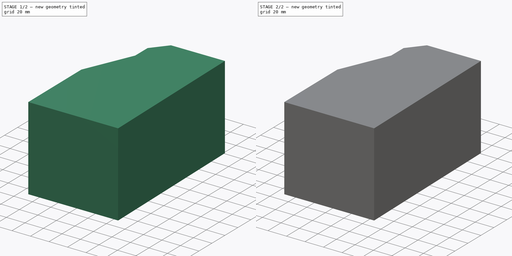
[diagram: build sequence overview — one tinted view per stage of 2, left to right]
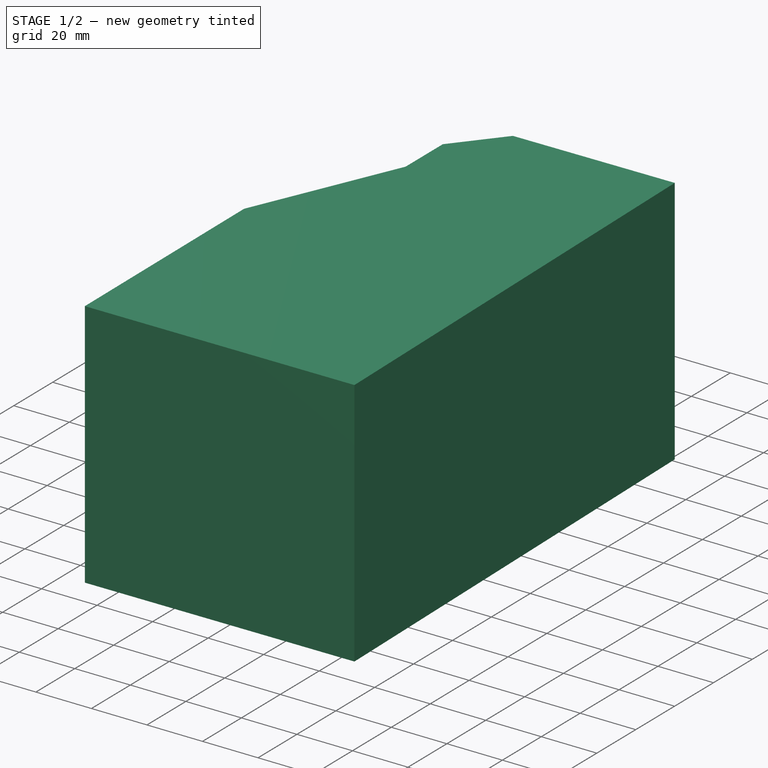
[diagram: stage 1 of 2 — iso view after this stage's code; geometry added in this stage tinted green]
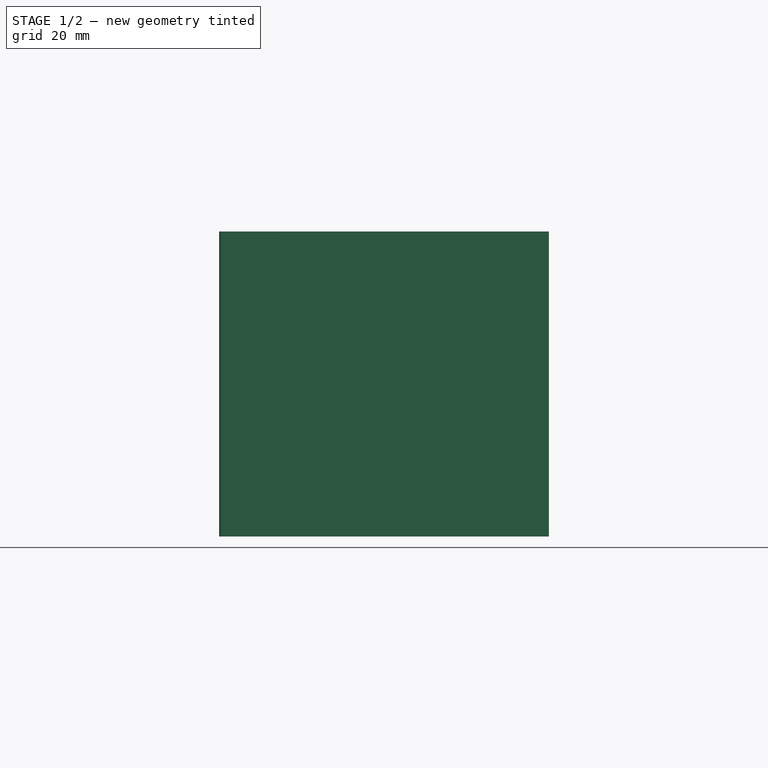
[diagram: stage 1 of 2 — front view after this stage's code; geometry added in this stage tinted green]
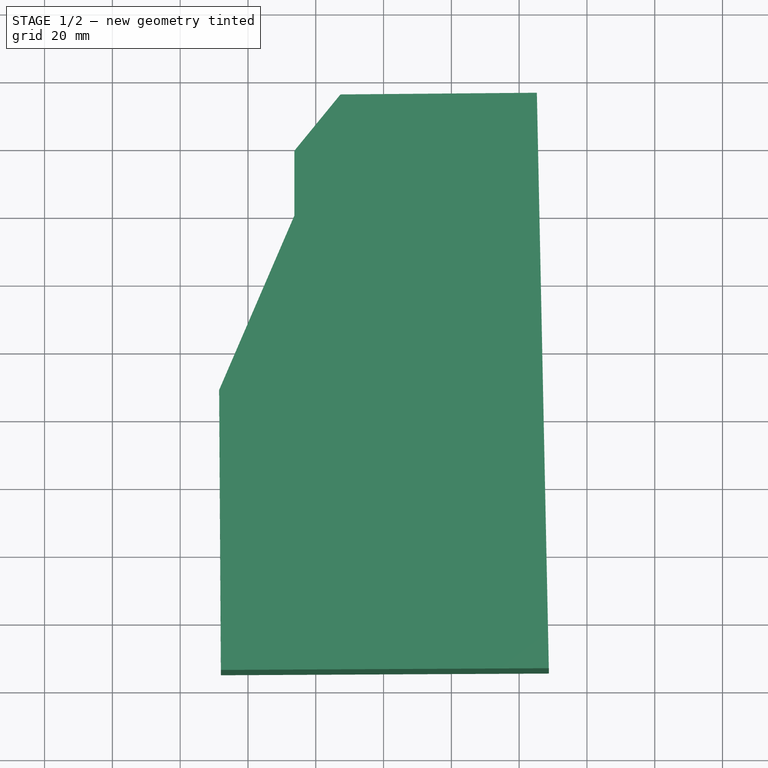
[diagram: stage 1 of 2 — top view after this stage's code; geometry added in this stage tinted green]
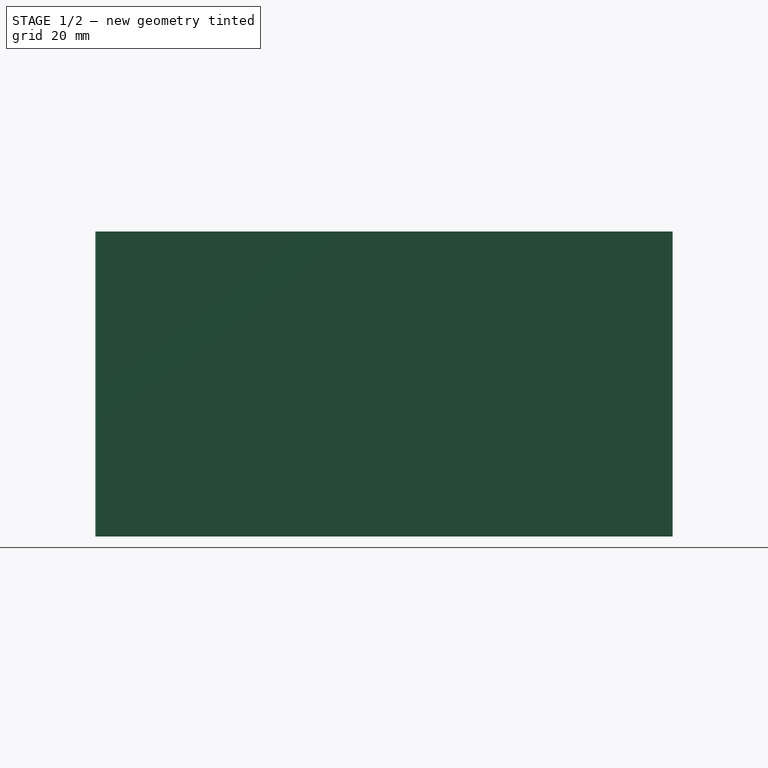
[diagram: stage 1 of 2 — right view after this stage's code; geometry added in this stage tinted green]
FCSTD DOCUMENT  (FreeCAD 0.18.4R)
Label: cabinav1
License: All rights reserved
LicenseURL: http://en.wikipedia.org/wiki/All_rights_reserved
objects: Sketcher::SketchObject×4, PartDesign::Pocket×3, PartDesign::Pad×1, PartDesign::Body×1
note: 13 computed .brp shape members not serialized (recipe doc carries the construction recipe); baked Part::Feature solids carry a one-line shape summary decoded from their .brp

FEATURE [Sketcher::SketchObject] Sketch
  MapMode = 5
  Support = -> [XY_Plane]
  sketch-geometry (7):
    g0: LineSegment StartX=-48.4922 StartY=7.78076 StartZ=0 EndX=-47.9883 EndY=-74.8534 EndZ=0
    g1: LineSegment StartX=-47.9883 StartY=-74.8534 StartZ=0 EndX=48.7541 EndY=-74.3496 EndZ=0
    g2: LineSegment StartX=48.7541 StartY=-74.3496 StartZ=0 EndX=45.2271 EndY=95.4536 EndZ=0
    g3: LineSegment StartX=45.2271 StartY=95.4536 StartZ=0 EndX=-12.7176 EndY=94.9497 EndZ=0
    g4: LineSegment StartX=-12.7176 StartY=94.9497 StartZ=0 EndX=-26.322 EndY=78.3221 EndZ=0
    g5: LineSegment StartX=-26.322 StartY=78.3221 StartZ=0 EndX=-26.322 EndY=59.1752 EndZ=0
    g6: LineSegment StartX=-26.322 StartY=59.1752 StartZ=0 EndX=-48.4922 EndY=7.78076 EndZ=0
  constraints (7):
    c: Coincident(g0,g1)
    c: Coincident(g1,g2)
    c: Coincident(g2,g3)
    c: Coincident(g3,g4)
    c: Coincident(g4,g5)
    c: Coincident(g5,g6)
    c: Coincident(g6,g0)
FEATURE [PartDesign::Pad] Pad
  Length = 90
  Length2 = 100
  Profile = -> Sketch
  Type = 0
FEATURE [Sketcher::SketchObject] Sketch001
  MapMode = 5
  Placement = pos=(-43.7141,18.8571,0) rot=(-0.421693,0.641161,0.641161;3.93973rad)
  Support = -> [Pad]
  sketch-geometry (4):
    g0: LineSegment StartX=-40.1522 StartY=86.0475 StartZ=0 EndX=9.62133 EndY=86.0475 EndZ=0
    g1: LineSegment StartX=9.62133 StartY=86.0475 StartZ=0 EndX=9.62133 EndY=5.92371 EndZ=0
    g2: LineSegment StartX=9.62133 StartY=5.92371 StartZ=0 EndX=-40.1522 EndY=5.92371 EndZ=0
    g3: LineSegment StartX=-40.1522 StartY=5.92371 StartZ=0 EndX=-40.1522 EndY=86.0475 EndZ=0
  constraints (8):
    c: Coincident(g0,g1)
    c: Coincident(g1,g2)
    c: Coincident(g2,g3)
    c: Coincident(g3,g0)
    c: Horizontal(g0)
    c: Horizontal(g2)
    c: Vertical(g1)
    c: Vertical(g3)
FEATURE [PartDesign::Pocket] Pocket
  BaseFeature = -> Pad
  Length = 12
  Length2 = 100
  Profile = -> Sketch001
  Type = 0
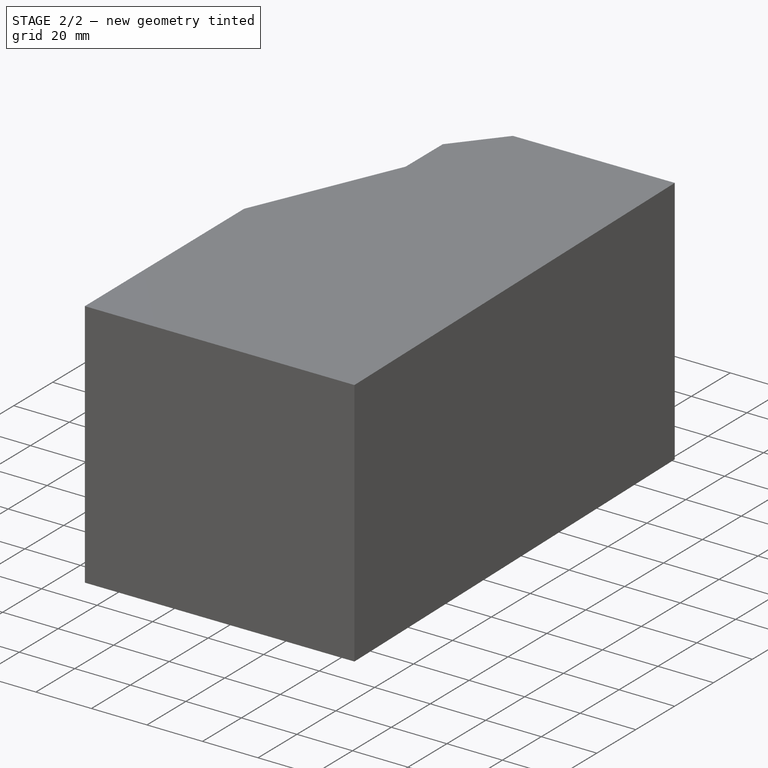
[diagram: stage 2 of 2 — iso view after this stage's code; geometry added in this stage tinted green]
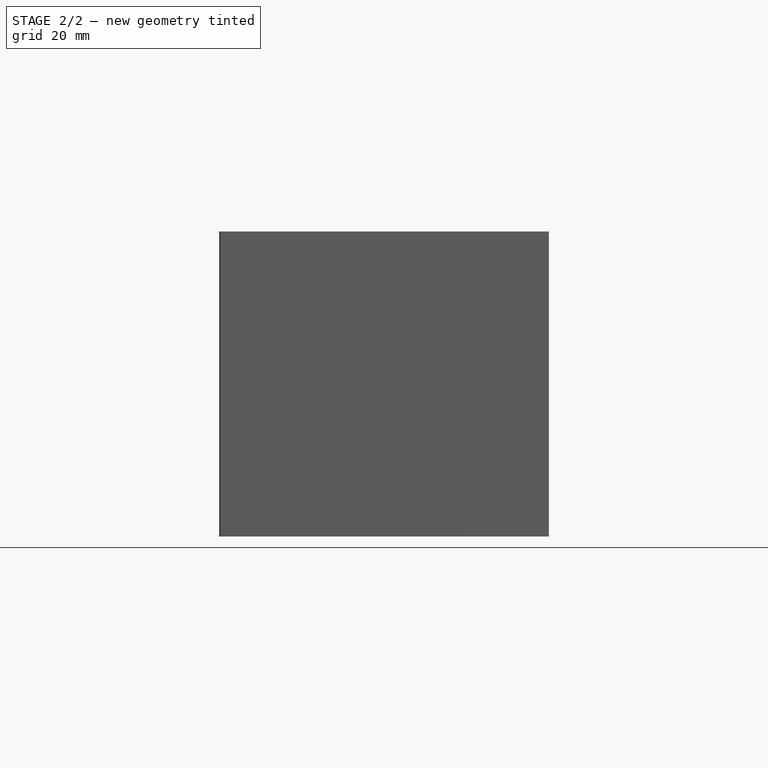
[diagram: stage 2 of 2 — front view after this stage's code; geometry added in this stage tinted green]
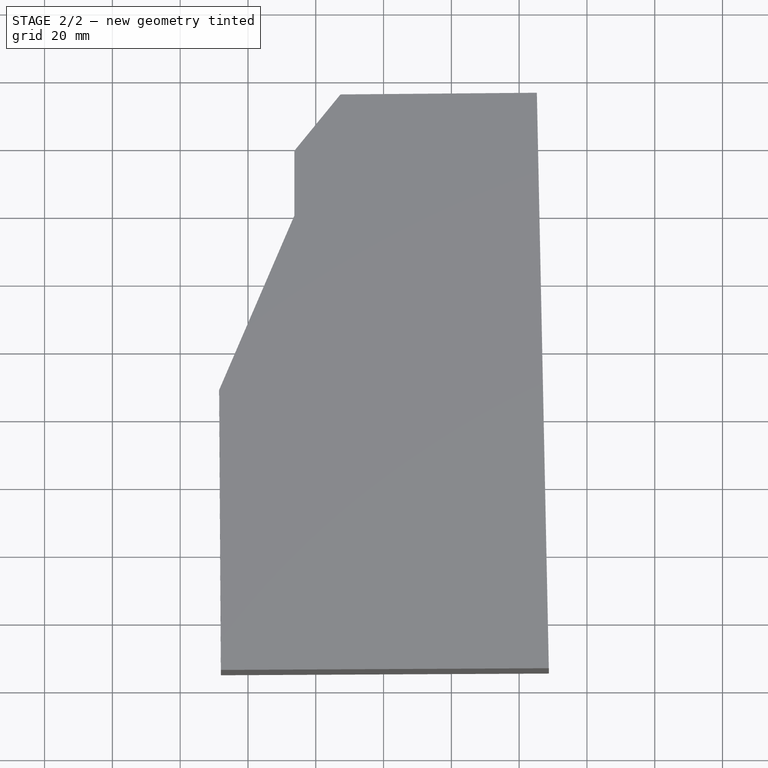
[diagram: stage 2 of 2 — top view after this stage's code; geometry added in this stage tinted green]
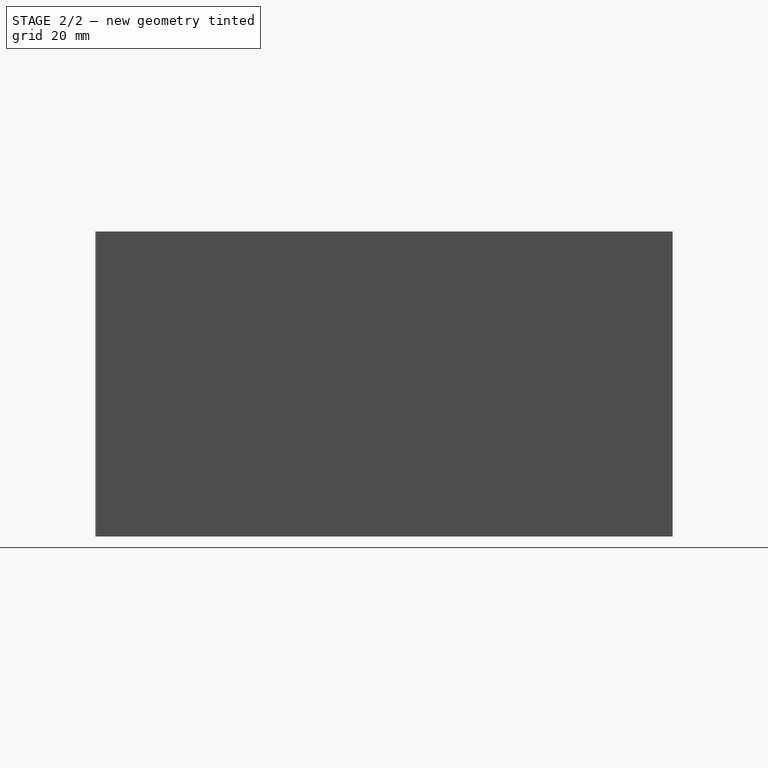
[diagram: stage 2 of 2 — right view after this stage's code; geometry added in this stage tinted green]
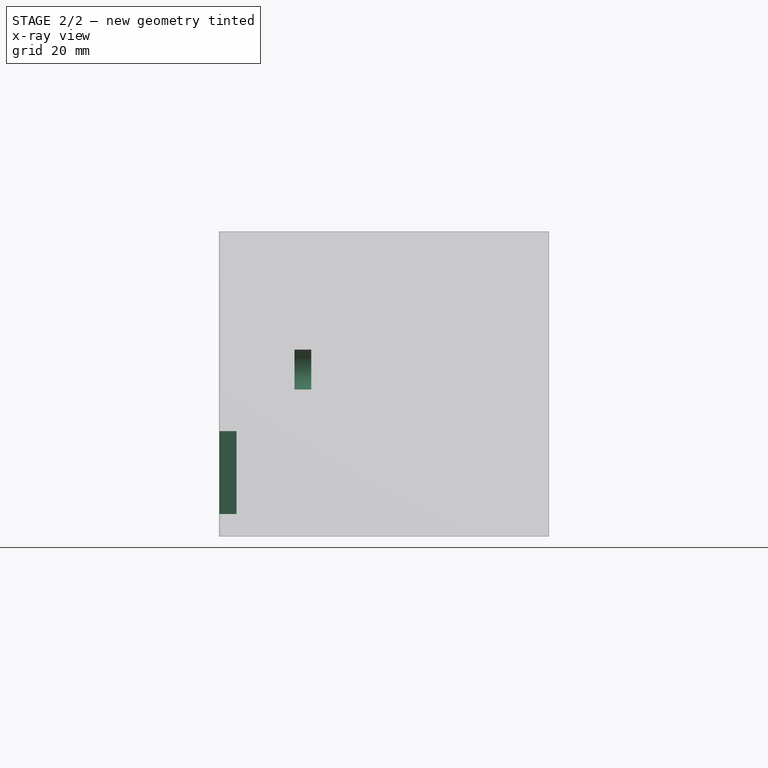
[diagram: stage 2 of 2 — x-ray composite at the front view; earlier geometry ghosted, this stage's added geometry solid]
FEATURE [Sketcher::SketchObject] Sketch002
  MapMode = 5
  Placement = pos=(-26.322,0,0) rot=(0.57735,-0.57735,-0.57735;2.0944rad)
  Support = -> [Pocket]
  sketch-geometry (1):
    g0: Circle CenterX=-67.5687 CenterY=49.2614 CenterZ=0 NormalX=0 NormalY=0 NormalZ=1 AngleXU=0 Radius=5.88796
FEATURE [PartDesign::Pocket] Pocket001
  BaseFeature = -> Pocket
  Length = 5
  Length2 = 100
  Profile = -> Sketch002
  Type = 0
FEATURE [Sketcher::SketchObject] Sketch003
  MapMode = 5
  Placement = pos=(-48.4429,-0.295375,0) rot=(0.579697,-0.576173,-0.576173;2.09088rad)
  Support = -> [Pocket001]
  sketch-geometry (4):
    g0: LineSegment StartX=10.0702 StartY=6.57654 StartZ=0 EndX=12.7838 EndY=6.57654 EndZ=0
    g1: LineSegment StartX=12.7838 StartY=6.57654 StartZ=0 EndX=12.7838 EndY=31.1029 EndZ=0
    g2: LineSegment StartX=12.7838 StartY=31.1029 StartZ=0 EndX=10.0702 EndY=31.1029 EndZ=0
    g3: LineSegment StartX=10.0702 StartY=31.1029 StartZ=0 EndX=10.0702 EndY=6.57654 EndZ=0
  constraints (8):
    c: Coincident(g0,g1)
    c: Coincident(g1,g2)
    c: Coincident(g2,g3)
    c: Coincident(g3,g0)
    c: Horizontal(g0)
    c: Horizontal(g2)
    c: Vertical(g1)
    c: Vertical(g3)
FEATURE [PartDesign::Pocket] Pocket002
  BaseFeature = -> Pocket001
  Length = 5
  Length2 = 100
  Profile = -> Sketch003
  Type = 0
FEATURE [PartDesign::Body] Body
  Group = -> [Sketch,Pad,Sketch001,Pocket,Sketch002,Pocket001,Sketch003,Pocket002]
  Origin = -> Origin
  Tip = -> Pocket002
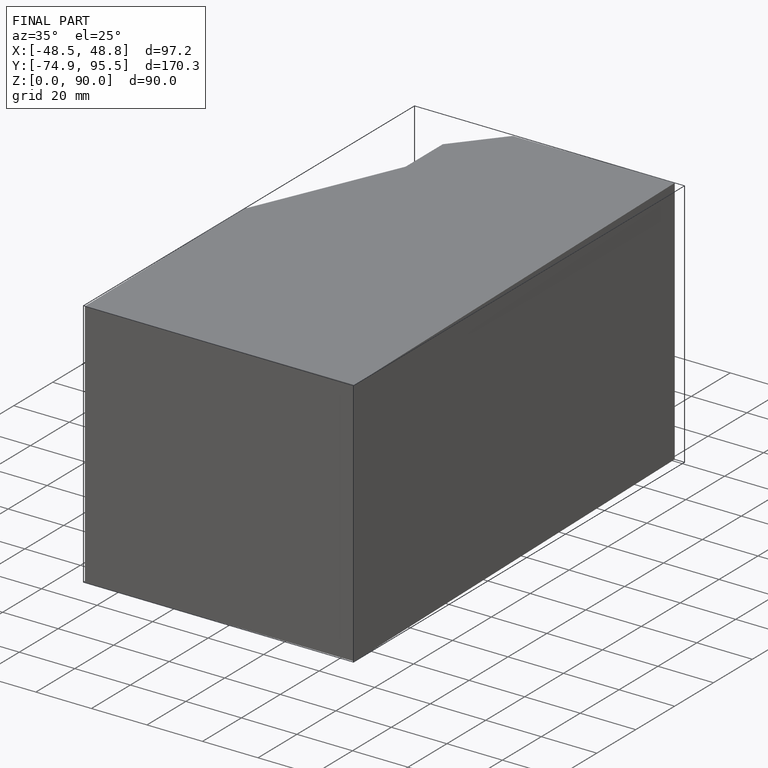
[diagram: finished part — iso view with bounding-box wireframe]
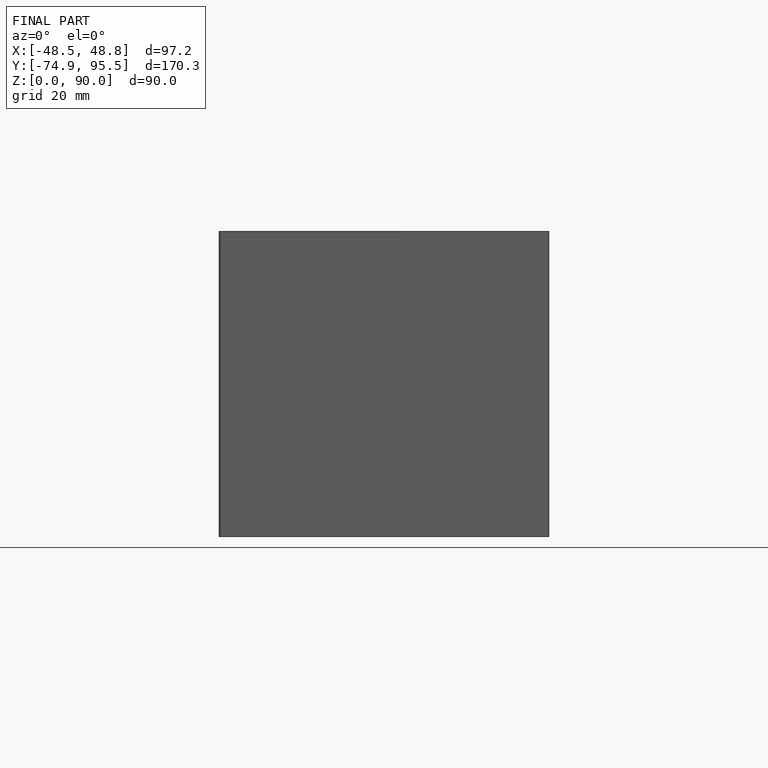
[diagram: finished part — front view with bounding-box wireframe]
